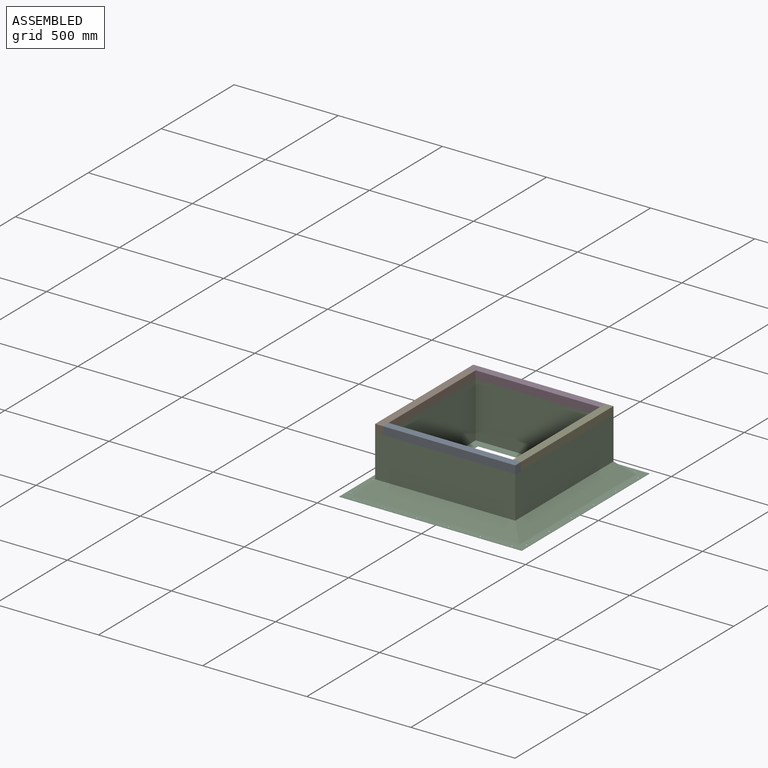
[diagram: assembled view]
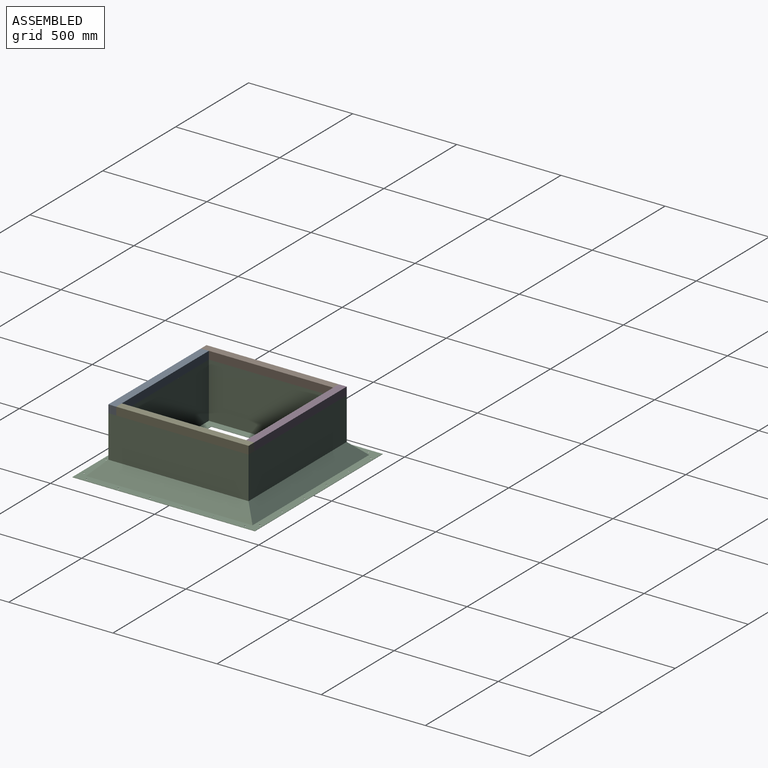
[diagram: assembled view, second angle]
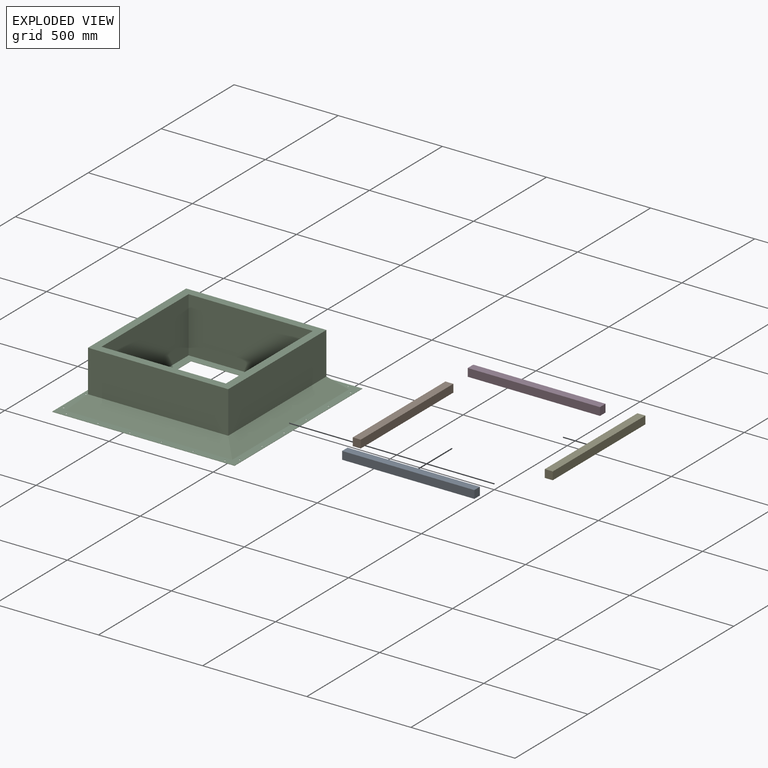
[diagram: exploded view]
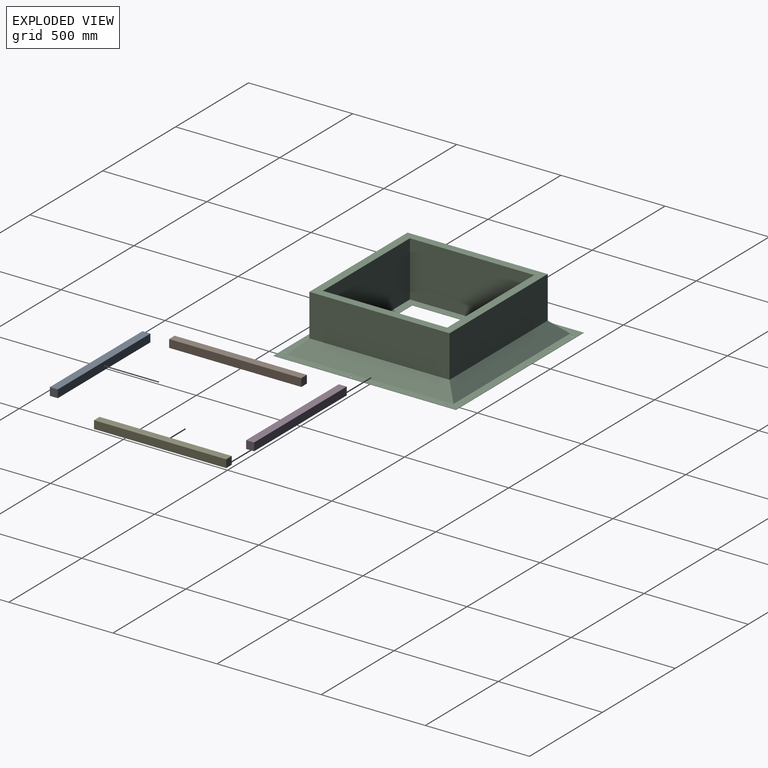
[diagram: exploded view, second angle]
ASSEMBLY  parts=5 mates=4
PART A: 6 faces, bbox 635x38.1x38.1 mm
  f0: plane 38.1x38.1mm, normal (1,0,0), area 1451.6mm2, adj f1,f3,f4,f5
  f1: plane 635x38.1mm, normal (0,1,0), area 24193.5mm2, adj f0,f2,f4,f5
  f2: plane 38.1x38.1mm, normal (-1,0,0), area 1451.6mm2, adj f1,f3,f4,f5
  f3: plane 635x38.1mm, normal (0,-1,0), area 24193.5mm2, adj f0,f2,f4,f5
  f4: plane 635x38.1mm, normal (0,0,1), area 24193.5mm2, adj f0,f1,f2,f3
  f5: plane 635x38.1mm, normal (0,0,-1), area 24193.5mm2, adj f0,f1,f2,f3
PART B: same geometry as A
PART C: 62 faces, bbox 876.3x876.3x266.7 mm
  f0: cylinder r=3.38mm len=6.76mm, axis (0,0,1), area 27.8mm2, adj f26,f40
  f1: cylinder r=3.38mm len=6.76mm, axis (0,0,1), area 27.8mm2, adj f26,f40
  f2: cylinder r=3.38mm len=6.76mm, axis (0,0,1), area 27.8mm2, adj f26,f40
  f3: cylinder r=3.38mm len=6.76mm, axis (0,0,1), area 27.8mm2, adj f26,f40
  f4: cylinder r=3.38mm len=6.76mm, axis (0,0,1), area 27.8mm2, adj f26,f40
  f5: cylinder r=3.38mm len=6.76mm, axis (0,0,1), area 27.8mm2, adj f26,f40
  f6: cylinder r=3.38mm len=6.76mm, axis (0,0,1), area 27.8mm2, adj f26,f40
  f7: cylinder r=3.38mm len=6.76mm, axis (0,0,1), area 27.8mm2, adj f26,f40
  f8: cylinder r=3.38mm len=6.76mm, axis (0,0,1), area 27.8mm2, adj f26,f40
  f9: cylinder r=3.38mm len=6.76mm, axis (0,0,1), area 27.8mm2, adj f26,f40
  f10: cylinder r=3.38mm len=6.76mm, axis (0,0,1), area 27.8mm2, adj f26,f40
  f11: cylinder r=3.38mm len=6.76mm, axis (0,0,1), area 27.8mm2, adj f26,f40
  f12: cylinder r=3.38mm len=6.76mm, axis (0,0,1), area 27.8mm2, adj f26,f40
  f13: cylinder r=3.38mm len=6.76mm, axis (0,0,1), area 27.8mm2, adj f26,f40
  f14: cylinder r=3.38mm len=6.76mm, axis (0,0,1), area 27.8mm2, adj f26,f40
  f15: cylinder r=3.38mm len=6.76mm, axis (0,0,1), area 27.8mm2, adj f26,f40
  f16: cylinder r=3.38mm len=6.76mm, axis (0,0,1), area 27.8mm2, adj f26,f40
  f17: cylinder r=3.38mm len=6.76mm, axis (0,0,1), area 27.8mm2, adj f26,f40
  f18: cylinder r=3.38mm len=6.76mm, axis (0,0,1), area 27.8mm2, adj f26,f40
  f19: cylinder r=3.38mm len=6.76mm, axis (0,0,1), area 27.8mm2, adj f26,f40
  f20: cylinder r=3.38mm len=6.76mm, axis (0,0,1), area 27.8mm2, adj f26,f40
  f21: cylinder r=3.38mm len=6.76mm, axis (0,0,1), area 27.8mm2, adj f26,f40
  f22: cylinder r=3.38mm len=6.76mm, axis (0,0,1), area 27.8mm2, adj f26,f40
  f23: plane 673.1x201.89mm, normal (0,-1,0), area 135891.7mm2, adj f25,f27,f28,f34
  f24: plane 673.1x201.89mm, normal (0,1,0), area 135891.7mm2, adj f25,f27,f28,f38
  f25: plane 673.1x673.1mm, normal (0,0,1), area 96774mm2, adj f23,f24,f27,f28,f29,f30,f31,f32
  f26: plane 876.3x876.3mm, normal (0,0,-1), area 495912.7mm2, adj f0,f1,f2,f3,f4,f5,f6,f7
  f27: plane 673.1x201.89mm, normal (-1,0,0), area 135891.7mm2, adj f23,f24,f25,f36
  f28: plane 673.1x201.89mm, normal (1,0,0), area 135891.7mm2, adj f23,f24,f25,f39
  f29: plane 596.9x265.39mm, normal (-1,0,0), area 158410.9mm2, adj f25,f30,f32,f46
  f30: plane 596.9x265.39mm, normal (0,-1,0), area 158410.9mm2, adj f25,f29,f31,f46
  f31: plane 596.9x265.39mm, normal (1,0,0), area 158410.9mm2, adj f25,f30,f32,f46
  f32: plane 596.9x265.39mm, normal (0,1,0), area 158410.9mm2, adj f25,f29,f31,f46
  f33: plane 876.3x1.31mm, normal (0,-1,0), area 1148.5mm2, adj f26,f35,f40,f41
  f34: plane 800.1x63.5mm, normal (0,-0.71,0.71), area 66148.6mm2, adj f23,f36,f39,f40
  f35: plane 876.3x1.31mm, normal (-1,0,0), area 1148.5mm2, adj f26,f33,f37,f40
  f36: plane 800.1x63.5mm, normal (-0.71,0,0.71), area 66148.6mm2, adj f27,f34,f38,f40
  f37: plane 876.3x1.31mm, normal (0,1,0), area 1148.5mm2, adj f26,f35,f40,f41
  f38: plane 800.1x63.5mm, normal (0,0.71,0.71), area 66148.6mm2, adj f24,f36,f39,f40
  f39: plane 800.1x63.5mm, normal (0.71,0,0.71), area 66148.6mm2, adj f28,f34,f38,f40
  f40: plane 876.3x876.3mm, normal (0,0,1), area 126881.2mm2, adj f0,f1,f2,f3,f4,f5,f6,f7
  f41: plane 876.3x1.31mm, normal (1,0,0), area 1148.5mm2, adj f26,f33,f37,f40
  f42: plane 520.7x1.31mm, normal (-1,0,0), area 682.5mm2, adj f26,f43,f45,f46
  f43: plane 520.7x1.31mm, normal (0,-1,0), area 682.5mm2, adj f26,f42,f44,f46
  f44: plane 520.7x1.31mm, normal (1,0,0), area 682.5mm2, adj f26,f43,f45,f46
  f45: plane 520.7x1.31mm, normal (0,1,0), area 682.5mm2, adj f26,f42,f44,f46
  f46: plane 596.9x596.9mm, normal (0,0,1), area 85161.1mm2, adj f29,f30,f31,f32,f42,f43,f44,f45
  f47: cylinder r=3.38mm len=6.76mm, axis (0,0,1), area 27.8mm2, adj f26,f40
  f48: plane 796.34x796.34mm, normal (0,0,1), area 274713.5mm2, adj f54,f55,f56,f57,f58,f59,f60,f61
  f49: plane 670.46x201.12mm, normal (0,1,0), area 134839.7mm2, adj f51,f52,f53,f58
  f50: plane 670.46x201.12mm, normal (0,-1,0), area 134839.7mm2, adj f51,f52,f53,f60
  f51: plane 670.46x670.46mm, normal (0,0,-1), area 90064.3mm2, adj f49,f50,f52,f53,f54,f55,f56,f57
  f52: plane 670.46x201.12mm, normal (1,0,0), area 134839.7mm2, adj f49,f50,f51,f59
  f53: plane 670.46x201.12mm, normal (-1,0,0), area 134839.7mm2, adj f49,f50,f51,f61
  f54: plane 599.54x264.06mm, normal (1,0,0), area 158314mm2, adj f48,f51,f55,f57
  f55: plane 599.54x264.06mm, normal (0,1,0), area 158314mm2, adj f48,f51,f54,f56
  f56: plane 599.54x264.06mm, normal (-1,0,0), area 158314mm2, adj f48,f51,f55,f57
  f57: plane 599.54x264.06mm, normal (0,-1,0), area 158314mm2, adj f48,f51,f54,f56
  f58: plane 796.34x62.94mm, normal (0,0.71,-0.71), area 65283.3mm2, adj f48,f49,f59,f61
  f59: plane 796.34x62.94mm, normal (0.71,0,-0.71), area 65283.3mm2, adj f48,f52,f58,f60
  f60: plane 796.34x62.94mm, normal (0,-0.71,-0.71), area 65283.3mm2, adj f48,f50,f59,f61
  f61: plane 796.34x62.94mm, normal (-0.71,0,-0.71), area 65283.3mm2, adj f48,f53,f58,f60
PART D: same geometry as A
PART E: same geometry as A
PLACE A at identity
PLACE B rot(axis=(0,0,-1),90deg) t=(0,0,0)mm
PLACE C at identity fixed
PLACE D rot(axis=(0,0,-1),180deg) t=(0,0,0)mm
PLACE E rot(axis=(0,0,-1),90deg) t=(635,38.1,0)mm
MATE fastened C.f28 <-> A.f0  axis (1,0,0) through (336.55,-336.55,133.35)mm
MATE fastened D.f1 <-> B.f2  axis (0,-1,0) through (-336.55,298.45,133.35)mm
MATE fastened E.f0 <-> A.f1  axis (0,-1,0) through (336.55,-298.45,133.35)mm
MATE fastened D.f2 <-> E.f3  axis (1,0,0) through (298.45,336.55,133.35)mm
